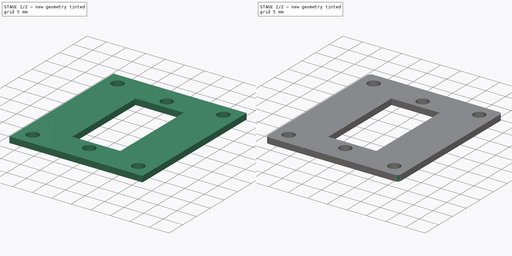
[diagram: build sequence overview — one tinted view per stage of 2, left to right]
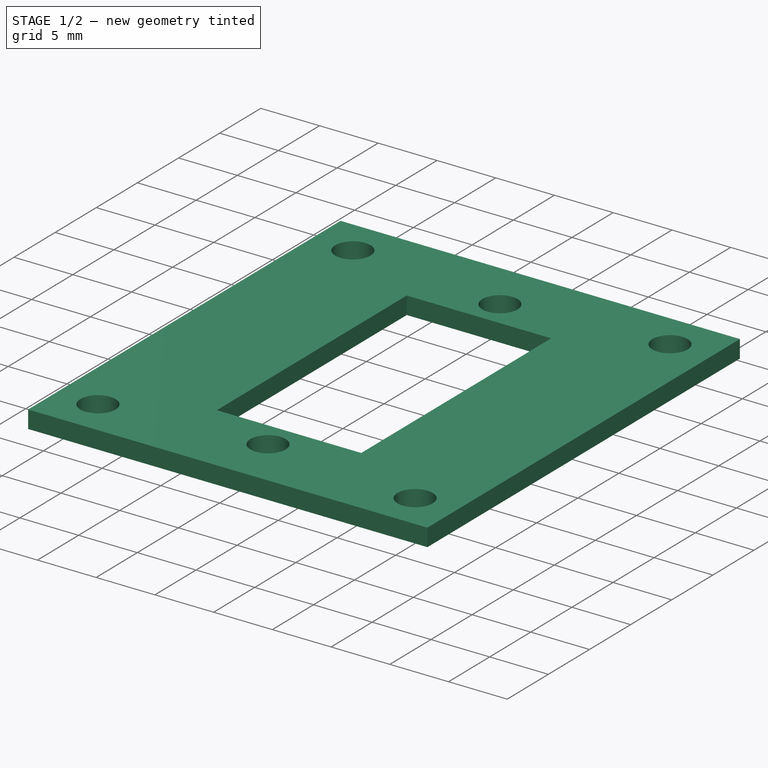
[diagram: stage 1 of 2 — iso view after this stage's code; geometry added in this stage tinted green]
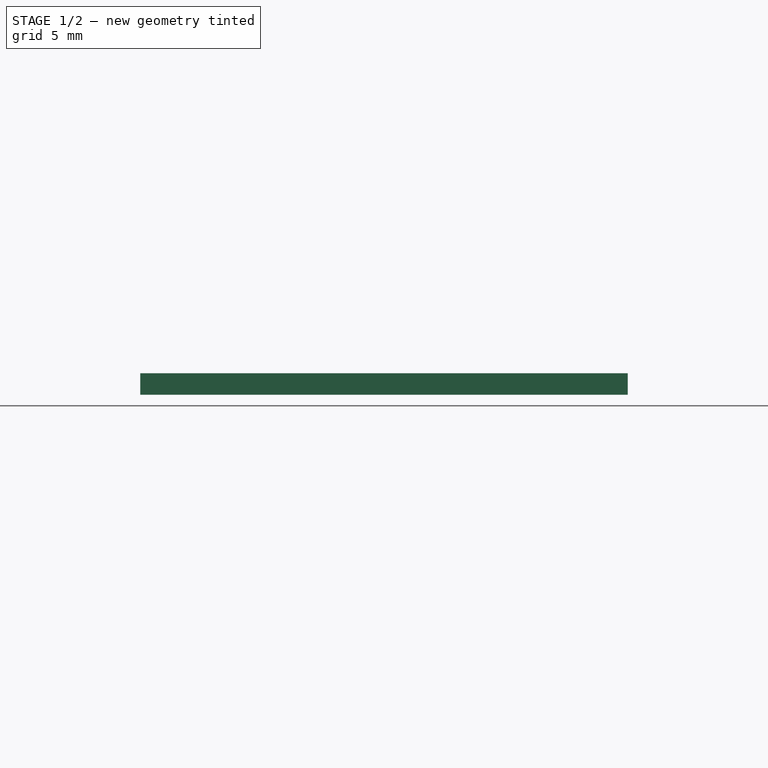
[diagram: stage 1 of 2 — front view after this stage's code; geometry added in this stage tinted green]
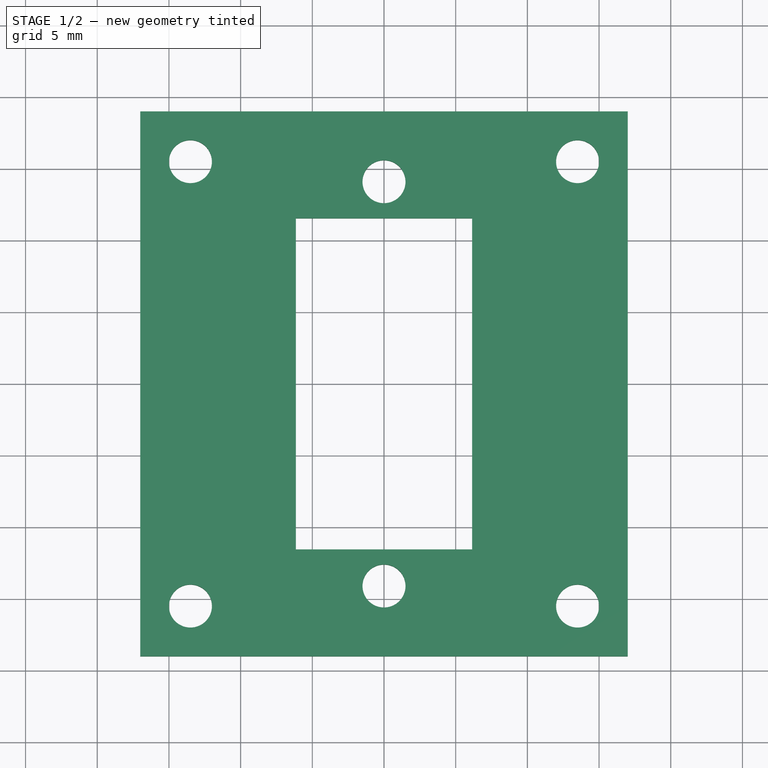
[diagram: stage 1 of 2 — top view after this stage's code; geometry added in this stage tinted green]
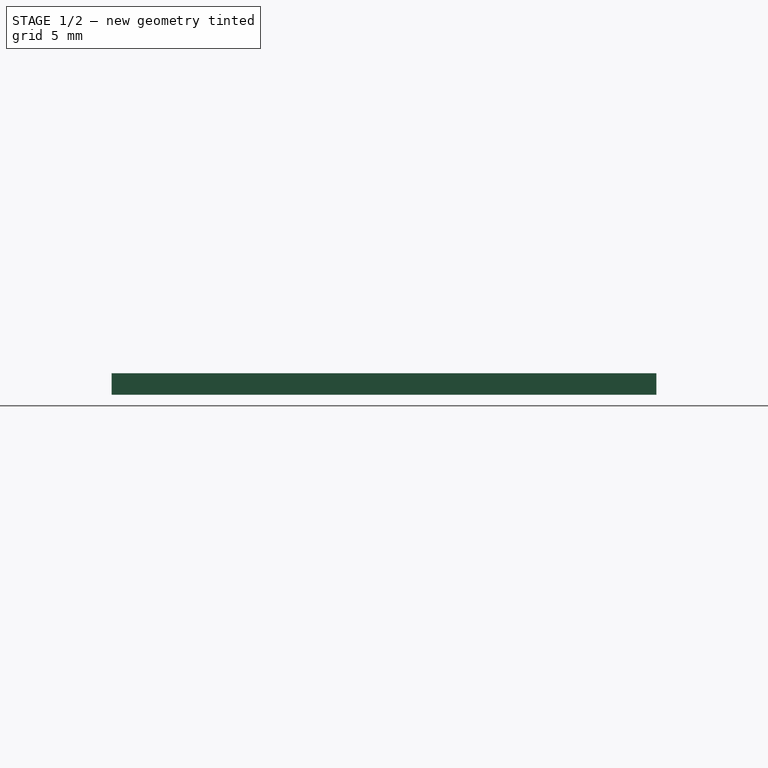
[diagram: stage 1 of 2 — right view after this stage's code; geometry added in this stage tinted green]
FCSTD DOCUMENT  (FreeCAD 0.18R4 (GitTag))
Label: Base
License: All rights reserved
LicenseURL: http://en.wikipedia.org/wiki/All_rights_reserved
objects: Sketcher::SketchObject×1, Part::Extrusion×1, Part::Fillet×1
note: 3 computed .brp shape members not serialized (recipe doc carries the construction recipe); baked Part::Feature solids carry a one-line shape summary decoded from their .brp

FEATURE [Sketcher::SketchObject] Sketch001  label="Base"
  sketch-geometry (14):
    g0: LineSegment StartX=-17 StartY=19 StartZ=0 EndX=17 EndY=19 EndZ=0
    g1: LineSegment StartX=17 StartY=19 StartZ=0 EndX=17 EndY=-19 EndZ=0
    g2: LineSegment StartX=17 StartY=-19 StartZ=0 EndX=-17 EndY=-19 EndZ=0
    g3: LineSegment StartX=-17 StartY=-19 StartZ=0 EndX=-17 EndY=19 EndZ=0
    g4: LineSegment StartX=-6.15 StartY=11.55 StartZ=0 EndX=6.15 EndY=11.55 EndZ=0
    g5: LineSegment StartX=6.15 StartY=11.55 StartZ=0 EndX=6.15 EndY=-11.55 EndZ=0
    g6: LineSegment StartX=6.15 StartY=-11.55 StartZ=0 EndX=-6.15 EndY=-11.55 EndZ=0
    g7: LineSegment StartX=-6.15 StartY=-11.55 StartZ=0 EndX=-6.15 EndY=11.55 EndZ=0
    g8: Circle CenterX=0 CenterY=14.1 CenterZ=0 NormalX=0 NormalY=0 NormalZ=1 AngleXU=0 Radius=1.5
    g9: Circle CenterX=0 CenterY=-14.1 CenterZ=0 NormalX=0 NormalY=0 NormalZ=1 AngleXU=0 Radius=1.5
    g10: Circle CenterX=13.5 CenterY=15.5 CenterZ=0 NormalX=0 NormalY=0 NormalZ=1 AngleXU=0 Radius=1.5
    g11: Circle CenterX=-13.5 CenterY=15.5 CenterZ=0 NormalX=0 NormalY=0 NormalZ=1 AngleXU=0 Radius=1.5
    g12: Circle CenterX=-13.5 CenterY=-15.5 CenterZ=0 NormalX=0 NormalY=0 NormalZ=1 AngleXU=0 Radius=1.5
    g13: Circle CenterX=13.5 CenterY=-15.5 CenterZ=0 NormalX=0 NormalY=0 NormalZ=1 AngleXU=0 Radius=1.5
  constraints (38):
    c: Coincident(g0,g1)
    c: Coincident(g1,g2)
    c: Coincident(g2,g3)
    c: Coincident(g3,g0)
    c: Vertical(g3)
    c: DistanceX(g0,g0) = 34
    c: DistanceY(g1,g1) = 38
    c: Symmetric(g1,g0,g-1)
    c: Symmetric(g2,g1,g-2)
    c: Horizontal(g0)
    c: Coincident(g4,g5)
    c: Coincident(g5,g6)
    c: Coincident(g6,g7)
    c: Coincident(g7,g4)
    c: Vertical(g7)
    c: DistanceX(g6,g6) = 12.3
    c: DistanceY(g5,g5) = 23.1
    c: Symmetric(g5,g4,g-1)
    c: Symmetric(g4,g4,g-2)
    c: DistanceX(g11,g10) = 27
    c: DistanceY(g10,g0) = 3.5
    c: DistanceX(g10,g0) = 3.5
    c: DistanceY(g11,g0) = 3.5
    c: DistanceY(g13,g10) = 31
    c: DistanceX(g13,g1) = 3.5
    c: DistanceX(g12,g13) = 27
    c: DistanceY(g2,g12) = 3.5
    c: Radius(g12) = 1.5
    c: Radius(g9) = 1.5
    c: Radius(g8) = 1.5
    c: Radius(g10) = 1.5
    c: Radius(g11) = 1.5
    c: Radius(g13) = 1.5
    c: Equal(g5,g7)
    c: DistanceY(g9,g8) = 28.2
    c: PointOnObject(g8,g-2)
    c: PointOnObject(g9,g-2)
    c: DistanceY(g-1,g8) = 14.1
FEATURE [Part::Extrusion] Extrude
  Base = -> Sketch001
  Dir = (0,0,1)
  DirMode = 2
  FaceMakerClass = Part::FaceMakerBullseye
  LengthFwd = 1.5
  LengthRev = 0
  Solid = true
  Symmetric = false
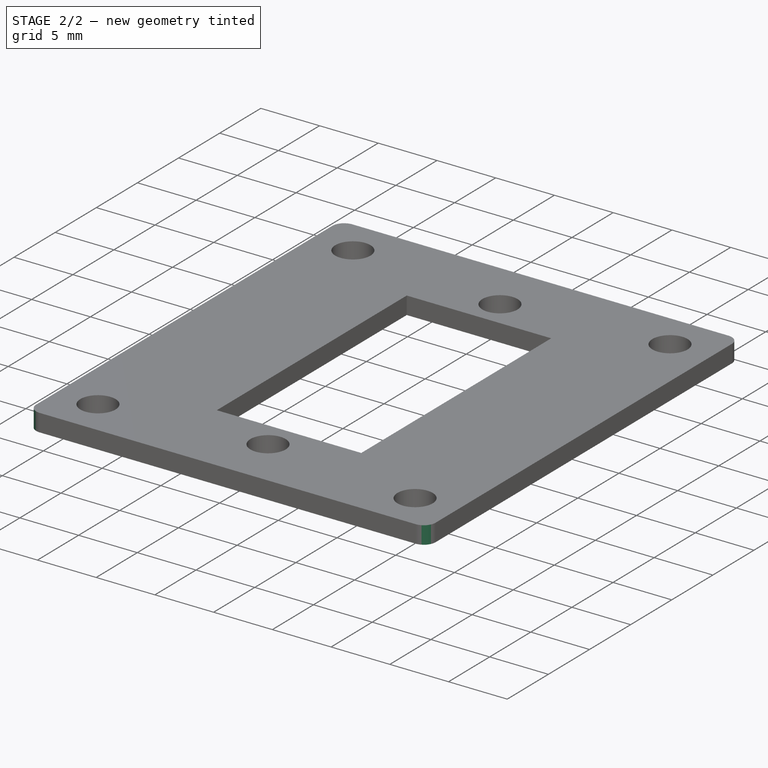
[diagram: stage 2 of 2 — iso view after this stage's code; geometry added in this stage tinted green]
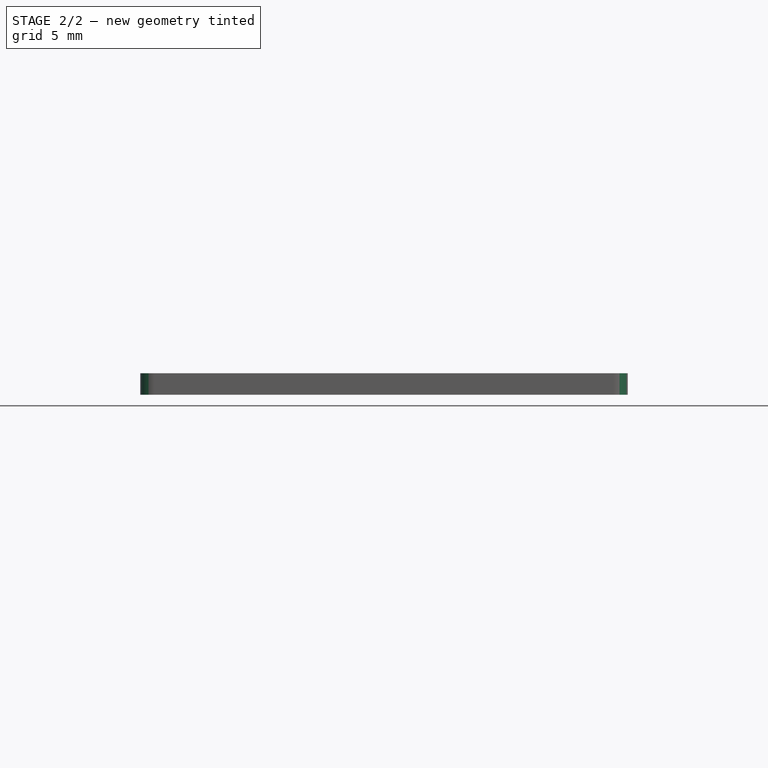
[diagram: stage 2 of 2 — front view after this stage's code; geometry added in this stage tinted green]
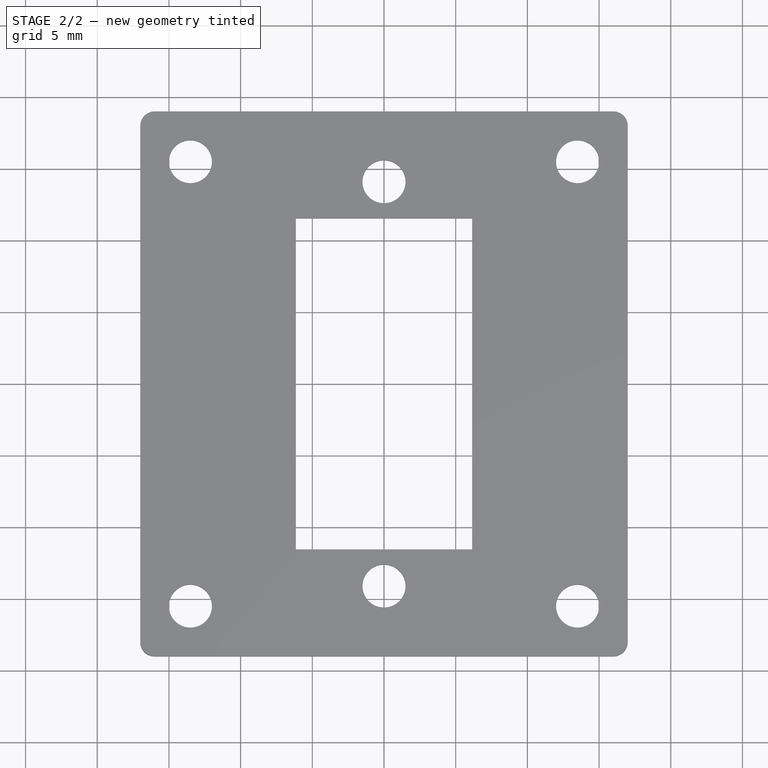
[diagram: stage 2 of 2 — top view after this stage's code; geometry added in this stage tinted green]
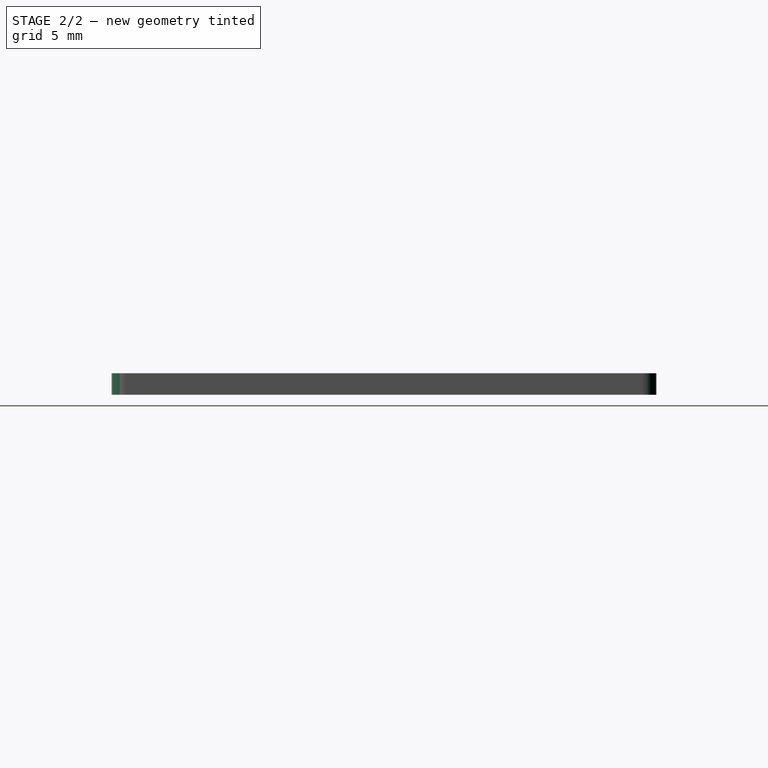
[diagram: stage 2 of 2 — right view after this stage's code; geometry added in this stage tinted green]
FEATURE [Part::Fillet] Fillet
  Base = -> Extrude
  Edges = 4 edges r=1: [Edge1,Edge2,Edge5,Edge8]
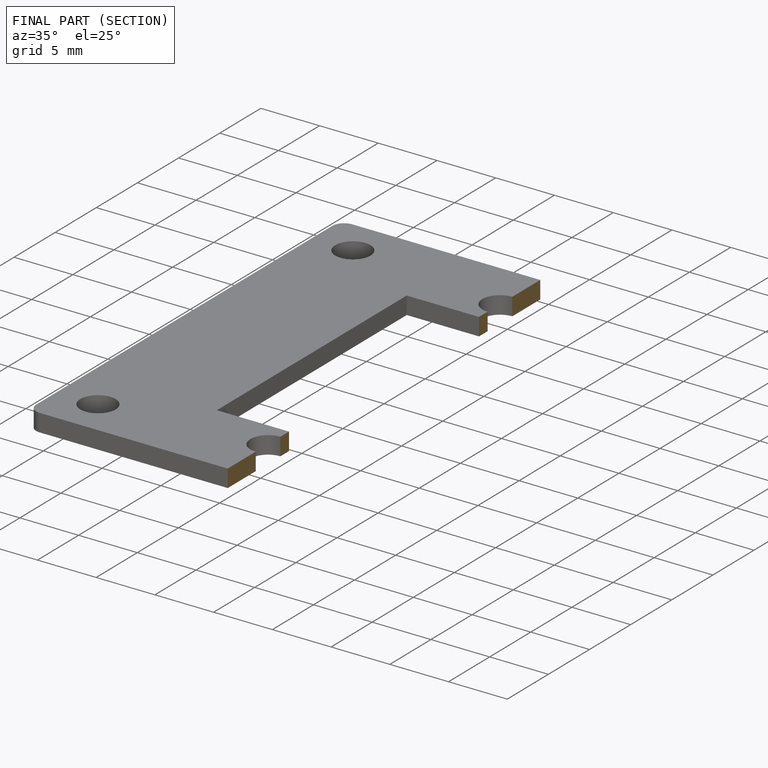
[diagram: finished part — half-section view (interior)]
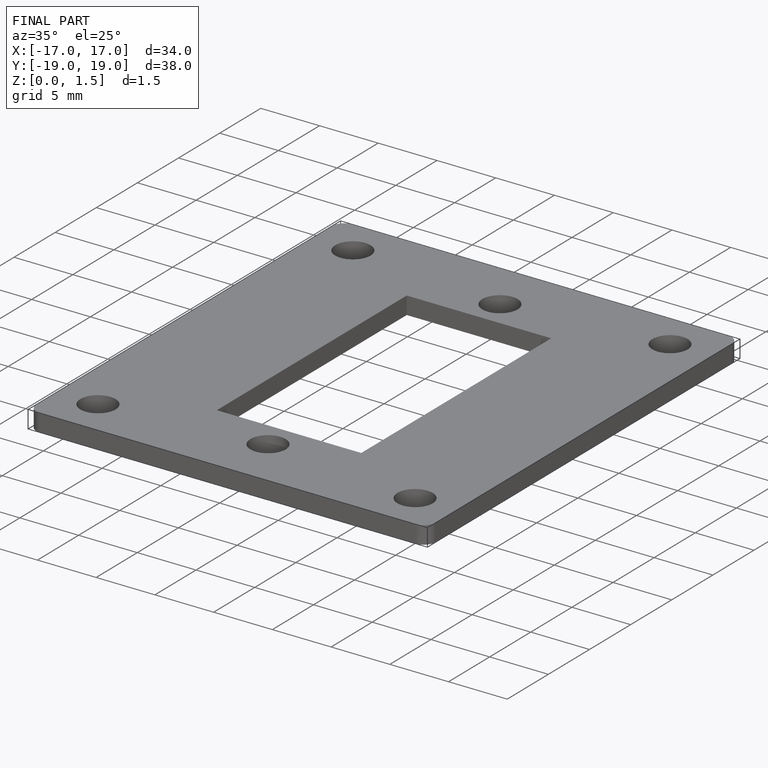
[diagram: finished part — iso view with bounding-box wireframe]
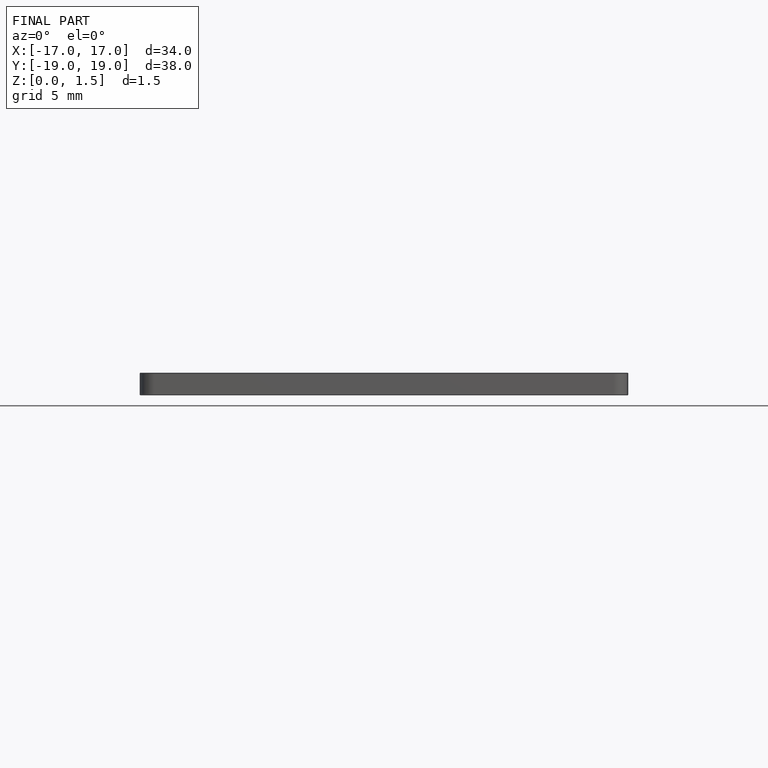
[diagram: finished part — front view with bounding-box wireframe]
